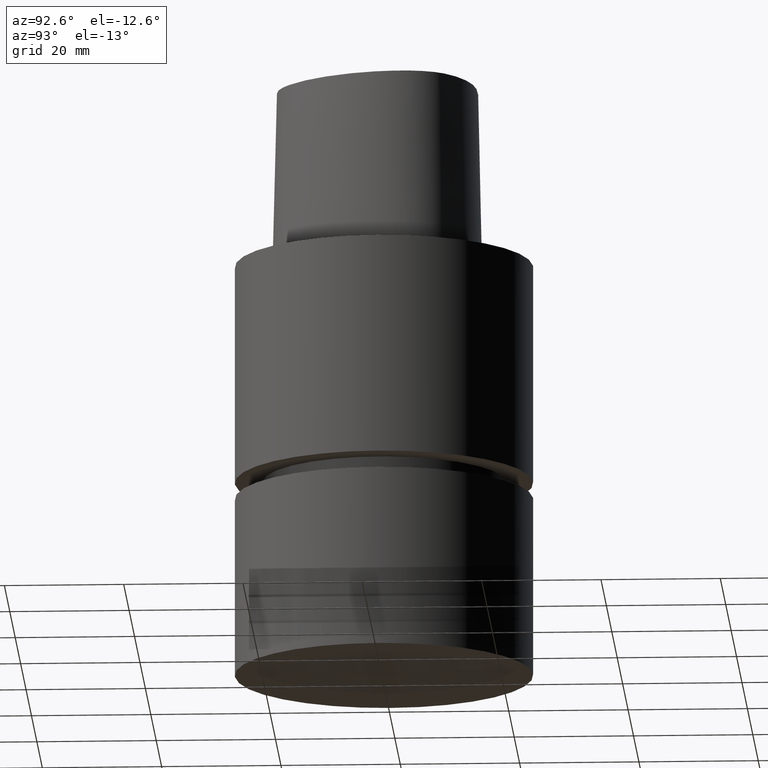
[diagram: clean part render]
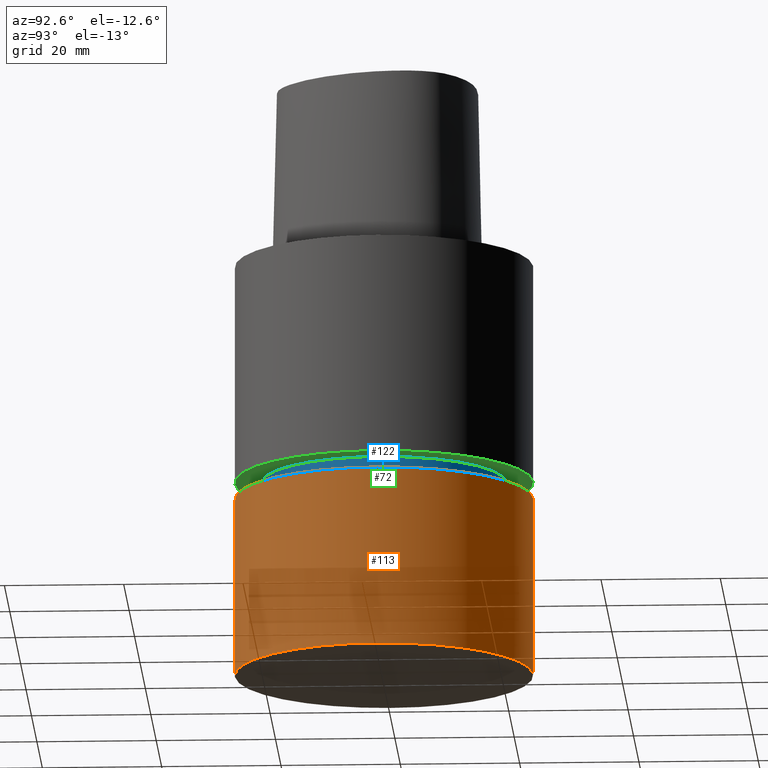
[diagram: same view with three faces highlighted in distinct colors, each labeled with its STEP entity id]
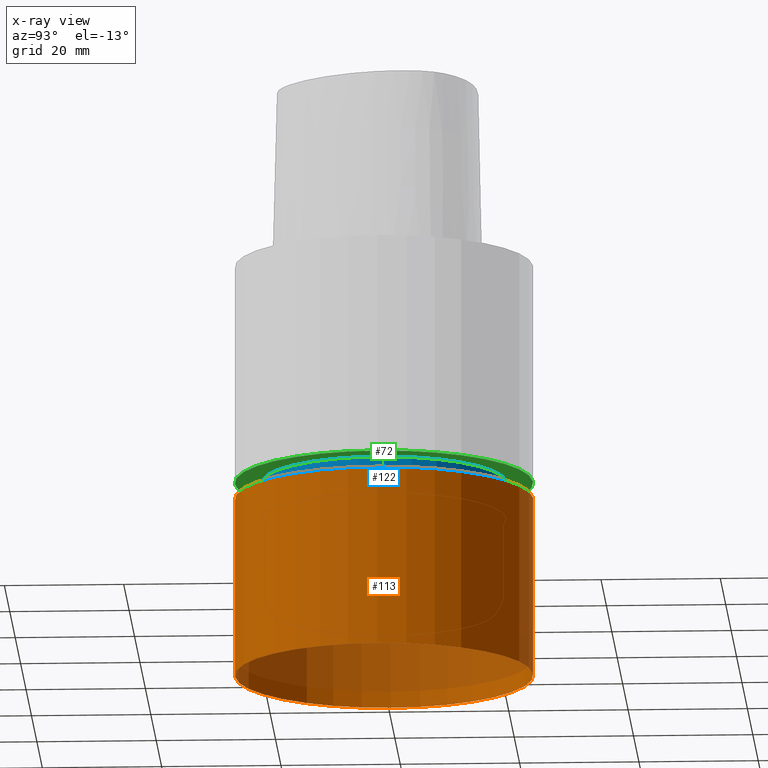
[diagram: x-ray of the same camera — body ghosted, the three highlighted faces saturated]
A machine part, auxiliary view with three faces highlighted in distinct colors.
The next image is the same camera in x-ray (body ghosted, the three faces saturated) — at least one of them is partly hidden behind the body in this view.
Their STEP definitions:

[orange] entity #113 — the highlighted cylindrical surface (bore or boss wall) has radius 25 mm, axis along (0, 0, -1).
#63=EDGE_CURVE('Unnamed[1]',#151,#151,#152,.T.);
#98=EDGE_CURVE('Unnamed[1]',#203,#203,#204,.T.);
#113=ADVANCED_FACE('Unnamed[1]',(#224,#225),#226,.T.);
#151=VERTEX_POINT('',#264);
#152=CIRCLE('',#265,25.0);
#203=VERTEX_POINT('',#427);
#204=CIRCLE('',#428,25.0);
#224=FACE_BOUND('',#885,.T.);
#225=FACE_BOUND('',#886,.T.);
#226=CYLINDRICAL_SURFACE('',#887,25.0);
#264=CARTESIAN_POINT('',(4.28626379701574E-015,25.0,-70.0));
#265=AXIS2_PLACEMENT_3D('',#916,#917,#918);
#427=CARTESIAN_POINT('',(2.43704713030323E-015,25.0,-39.8));
#428=AXIS2_PLACEMENT_3D('',#966,#967,#968);
#885=EDGE_LOOP('',(#987));
#886=EDGE_LOOP('',(#988));
#887=AXIS2_PLACEMENT_3D('',#989,#990,#991);
#916=CARTESIAN_POINT('',(4.28626379701574E-015,8.57252759403147E-015,-70.0));
#917=DIRECTION('',(6.12323399573677E-017,1.22464679914735E-016,-1.0));
#918=DIRECTION('',(-1.23259516440783E-032,1.0,1.22464679914735E-016));
#966=CARTESIAN_POINT('',(2.43704713030323E-015,4.87409426060646E-015,-39.8));
#967=DIRECTION('',(6.12323399573677E-017,1.22464679914735E-016,-1.0));
#968=DIRECTION('',(-1.23259516440783E-032,1.0,1.22464679914735E-016));
#987=ORIENTED_EDGE('',*,*,#63,.F.);
#988=ORIENTED_EDGE('',*,*,#98,.T.);
#989=CARTESIAN_POINT('',(3.36165546365948E-015,6.72331092731897E-015,-54.9));
#990=DIRECTION('',(6.12323399573677E-017,1.22464679914735E-016,-1.0));
#991=DIRECTION('',(-1.23259516440783E-032,1.0,1.22464679914735E-016));

[blue] entity #122 — the highlighted cylindrical surface (bore or boss wall) has radius 20.5 mm, axis along (0, 0, -1).
#83=EDGE_CURVE('Unnamed[1]',#183,#183,#184,.T.);
#122=ADVANCED_FACE('Unnamed[1]',(#237,#238),#239,.T.);
#127=EDGE_CURVE('Unnamed[1]',#246,#246,#247,.T.);
#183=VERTEX_POINT('',#402);
#184=CIRCLE('',#403,20.4999999999911);
#237=FACE_BOUND('',#901,.T.);
#238=FACE_BOUND('',#902,.T.);
#239=CYLINDRICAL_SURFACE('',#903,20.4999999999961);
#246=VERTEX_POINT('',#912);
#247=CIRCLE('',#913,20.5000000000012);
#402=CARTESIAN_POINT('',(2.26560622676593E-015,20.4999999999911,-37.0001575694042));
#403=AXIS2_PLACEMENT_3D('',#946,#947,#948);
#901=EDGE_LOOP('',(#1003));
#902=EDGE_LOOP('',(#1004));
#903=AXIS2_PLACEMENT_3D('',#1005,#1006,#1007);
#912=CARTESIAN_POINT('',(2.64594018250956E-015,20.5000000000012,-43.211482434801));
#913=AXIS2_PLACEMENT_3D('',#1014,#1015,#1016);
#946=CARTESIAN_POINT('',(2.26560622676593E-015,4.53121245353186E-015,-37.0001575694042));
#947=DIRECTION('',(6.12323399573677E-017,1.22464679914735E-016,-1.0));
#948=DIRECTION('',(-1.23259516440783E-032,1.0,1.22464679914735E-016));
#1003=ORIENTED_EDGE('',*,*,#127,.F.);
#1004=ORIENTED_EDGE('',*,*,#83,.T.);
#1005=CARTESIAN_POINT('',(2.45577320463774E-015,4.91154640927548E-015,-40.1058200021026));
#1006=DIRECTION('',(6.12323399573677E-017,1.22464679914735E-016,-1.0));
#1007=DIRECTION('',(-1.23259516440783E-032,1.0,1.22464679914735E-016));
#1014=CARTESIAN_POINT('',(2.64594018250956E-015,5.29188036501911E-015,-43.211482434801));
#1015=DIRECTION('',(6.12323399573677E-017,1.22464679914735E-016,-1.0));
#1016=DIRECTION('',(-1.23259516440783E-032,1.0,1.22464679914735E-016));

[green] entity #72 — the highlighted planar face has unit normal (0, 0, -1).
#72=ADVANCED_FACE('Unnamed[1]',(#165,#166),#167,.T.);
#83=EDGE_CURVE('Unnamed[1]',#183,#183,#184,.T.);
#100=EDGE_CURVE('Unnamed[1]',#206,#206,#207,.T.);
#165=FACE_BOUND('',#281,.T.);
#166=FACE_OUTER_BOUND('',#282,.T.);
#167=PLANE('',#283);
#183=VERTEX_POINT('',#402);
#184=CIRCLE('',#403,20.4999999999911);
#206=VERTEX_POINT('',#431);
#207=CIRCLE('',#432,25.0);
#281=EDGE_LOOP('',(#932));
#282=EDGE_LOOP('',(#933));
#283=AXIS2_PLACEMENT_3D('',#934,#935,#936);
#402=CARTESIAN_POINT('',(2.26560622676593E-015,20.4999999999911,-37.0001575694042));
#403=AXIS2_PLACEMENT_3D('',#946,#947,#948);
#431=CARTESIAN_POINT('',(2.2656062267659E-015,25.0,-37.0001575694037));
#432=AXIS2_PLACEMENT_3D('',#969,#970,#971);
#932=ORIENTED_EDGE('',*,*,#83,.F.);
#933=ORIENTED_EDGE('',*,*,#100,.T.);
#934=CARTESIAN_POINT('',(2.26560622676591E-015,22.7499999999955,-37.000157569404));
#935=DIRECTION('',(6.12323399573677E-017,1.12230318544064E-013,-1.0));
#936=DIRECTION('',(-6.87695217134457E-030,1.0,1.12230318544064E-013));
#946=CARTESIAN_POINT('',(2.26560622676593E-015,4.53121245353186E-015,-37.0001575694042));
#947=DIRECTION('',(6.12323399573677E-017,1.22464679914735E-016,-1.0));
#948=DIRECTION('',(-1.23259516440783E-032,1.0,1.22464679914735E-016));
#969=CARTESIAN_POINT('',(2.2656062267659E-015,4.53121245353179E-015,-37.0001575694037));
#970=DIRECTION('',(6.12323399573677E-017,1.22464679914735E-016,-1.0));
#971=DIRECTION('',(-1.23259516440783E-032,1.0,1.22464679914735E-016));